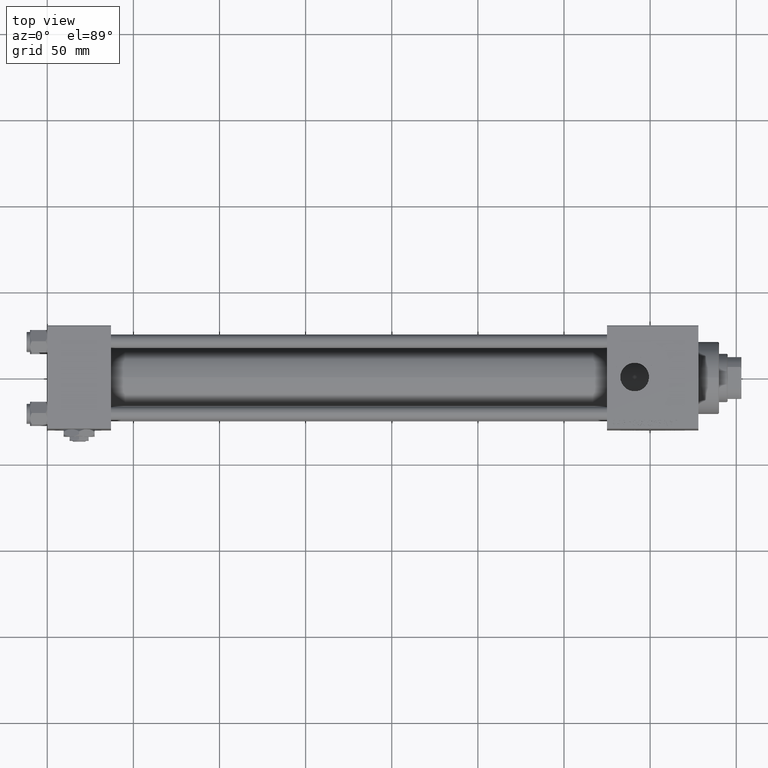
[diagram: clean part render]
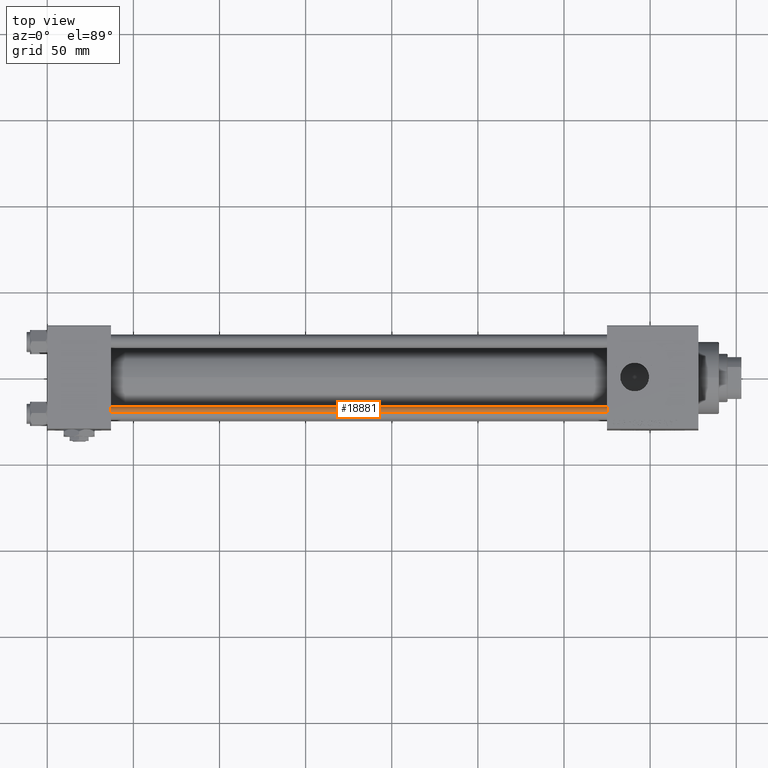
[diagram: same view with one face highlighted and labeled with its STEP entity id]
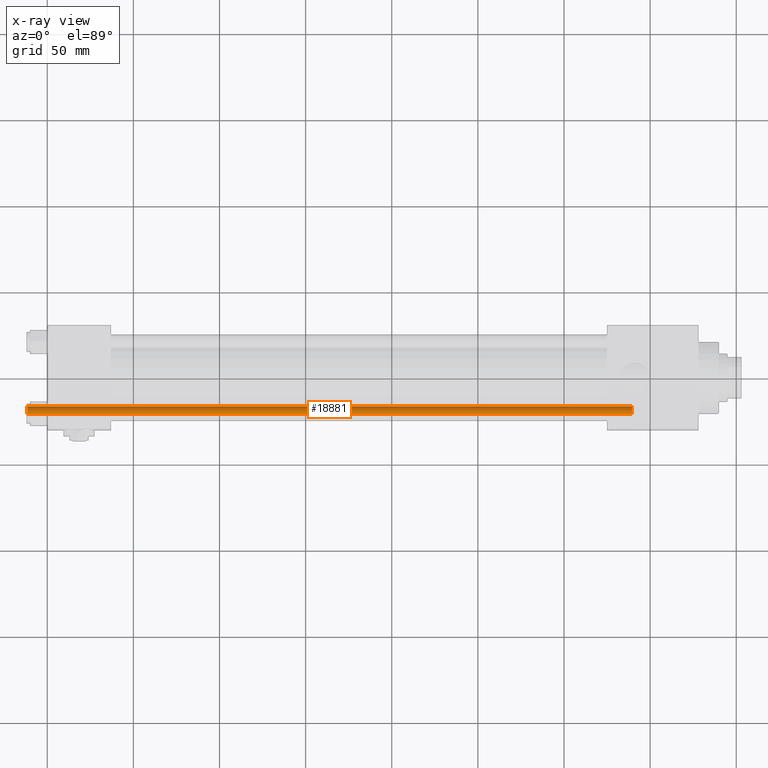
[diagram: x-ray of the same camera — body ghosted, the highlighted face saturated]
A machine part, top view. The second image highlights one B-rep face of the part: STEP entity #18881.
The next image is the same camera in x-ray: the body ghosted, the highlighted face saturated — about 0% of this face is hidden behind the body in this view.
In plain terms, the highlighted cylindrical surface (edge-blend (fillet) strip) has radius 4 mm, axis along (1, 0, -0).
Its self-contained STEP definition (entity closure, byte-faithful):
#279 = DIRECTION ( 'NONE',  ( 1.000000000000000000, 0.000000000000000000, 0.000000000000000000 ) ) ;
#1895 = EDGE_CURVE ( 'NONE', #3072, #8499, #48848, .T. ) ;
#2403 = CARTESIAN_POINT ( 'NONE',  ( 0.000000000000000000, 0.000000000000000000, 351.5000000000000000 ) ) ;
#2986 = CARTESIAN_POINT ( 'NONE',  ( -4.000000000000000000, 0.000000000000000000, 352.0000000000000000 ) ) ;
#3072 = VERTEX_POINT ( 'NONE', #24949 ) ;
#5441 = EDGE_CURVE ( 'NONE', #21156, #34904, #22960, .T. ) ;
#5495 = VECTOR ( 'NONE', #35265, 1000.000000000000000 ) ;
#7025 = FACE_OUTER_BOUND ( 'NONE', #31324, .T. ) ;
#8037 = CARTESIAN_POINT ( 'NONE',  ( 4.000000000000000000, 4.898587196589412829E-16, 0.5000000000000004441 ) ) ;
#8499 = VERTEX_POINT ( 'NONE', #35664 ) ;
#9943 = VECTOR ( 'NONE', #40031, 1000.000000000000000 ) ;
#11922 = EDGE_CURVE ( 'NONE', #8499, #21156, #19254, .T. ) ;
#16132 = CARTESIAN_POINT ( 'NONE',  ( 0.000000000000000000, 0.000000000000000000, 0.5000000000000004441 ) ) ;
#17114 = AXIS2_PLACEMENT_3D ( 'NONE', #16132, #40284, #24272 ) ;
#18329 = DIRECTION ( 'NONE',  ( -1.000000000000000000, 0.000000000000000000, 0.000000000000000000 ) ) ;
#18848 = DIRECTION ( 'NONE',  ( -0.000000000000000000, -0.000000000000000000, -1.000000000000000000 ) ) ;
#18881 = ADVANCED_FACE ( 'NONE', ( #7025 ), #37765, .T. ) ;
#19254 = LINE ( 'NONE', #2986, #5495 ) ;
#19336 = EDGE_CURVE ( 'NONE', #3072, #34904, #38995, .T. ) ;
#21156 = VERTEX_POINT ( 'NONE', #50207 ) ;
#22960 = CIRCLE ( 'NONE', #17114, 4.000000000000000000 ) ;
#23911 = DIRECTION ( 'NONE',  ( 0.000000000000000000, 0.000000000000000000, -1.000000000000000000 ) ) ;
#24272 = DIRECTION ( 'NONE',  ( 1.000000000000000000, 0.000000000000000000, 0.000000000000000000 ) ) ;
#24949 = CARTESIAN_POINT ( 'NONE',  ( 4.000000000000000000, 4.898587196589412829E-16, 351.5000000000000000 ) ) ;
#26980 = CARTESIAN_POINT ( 'NONE',  ( 0.000000000000000000, 0.000000000000000000, 352.0000000000000000 ) ) ;
#30563 = ORIENTED_EDGE ( 'NONE', *, *, #1895, .T. ) ;
#31324 = EDGE_LOOP ( 'NONE', ( #42752, #30563, #34192, #51830 ) ) ;
#34192 = ORIENTED_EDGE ( 'NONE', *, *, #11922, .T. ) ;
#34904 = VERTEX_POINT ( 'NONE', #8037 ) ;
#35265 = DIRECTION ( 'NONE',  ( -0.000000000000000000, -0.000000000000000000, -1.000000000000000000 ) ) ;
#35664 = CARTESIAN_POINT ( 'NONE',  ( -4.000000000000000000, 0.000000000000000000, 351.5000000000000000 ) ) ;
#37765 = CYLINDRICAL_SURFACE ( 'NONE', #44256, 4.000000000000000000 ) ;
#38995 = LINE ( 'NONE', #39764, #9943 ) ;
#39764 = CARTESIAN_POINT ( 'NONE',  ( 4.000000000000000000, 4.898587196589412829E-16, 352.0000000000000000 ) ) ;
#40031 = DIRECTION ( 'NONE',  ( -0.000000000000000000, -0.000000000000000000, -1.000000000000000000 ) ) ;
#40284 = DIRECTION ( 'NONE',  ( -0.000000000000000000, -0.000000000000000000, 1.000000000000000000 ) ) ;
#42752 = ORIENTED_EDGE ( 'NONE', *, *, #19336, .F. ) ;
#44256 = AXIS2_PLACEMENT_3D ( 'NONE', #26980, #18848, #18329 ) ;
#44634 = AXIS2_PLACEMENT_3D ( 'NONE', #2403, #23911, #279 ) ;
#48848 = CIRCLE ( 'NONE', #44634, 4.000000000000000000 ) ;
#50207 = CARTESIAN_POINT ( 'NONE',  ( -4.000000000000000000, 0.000000000000000000, 0.5000000000000004441 ) ) ;
#51830 = ORIENTED_EDGE ( 'NONE', *, *, #5441, .T. ) ;